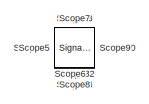
[diagram: root canvas - part 1/3, top left region]
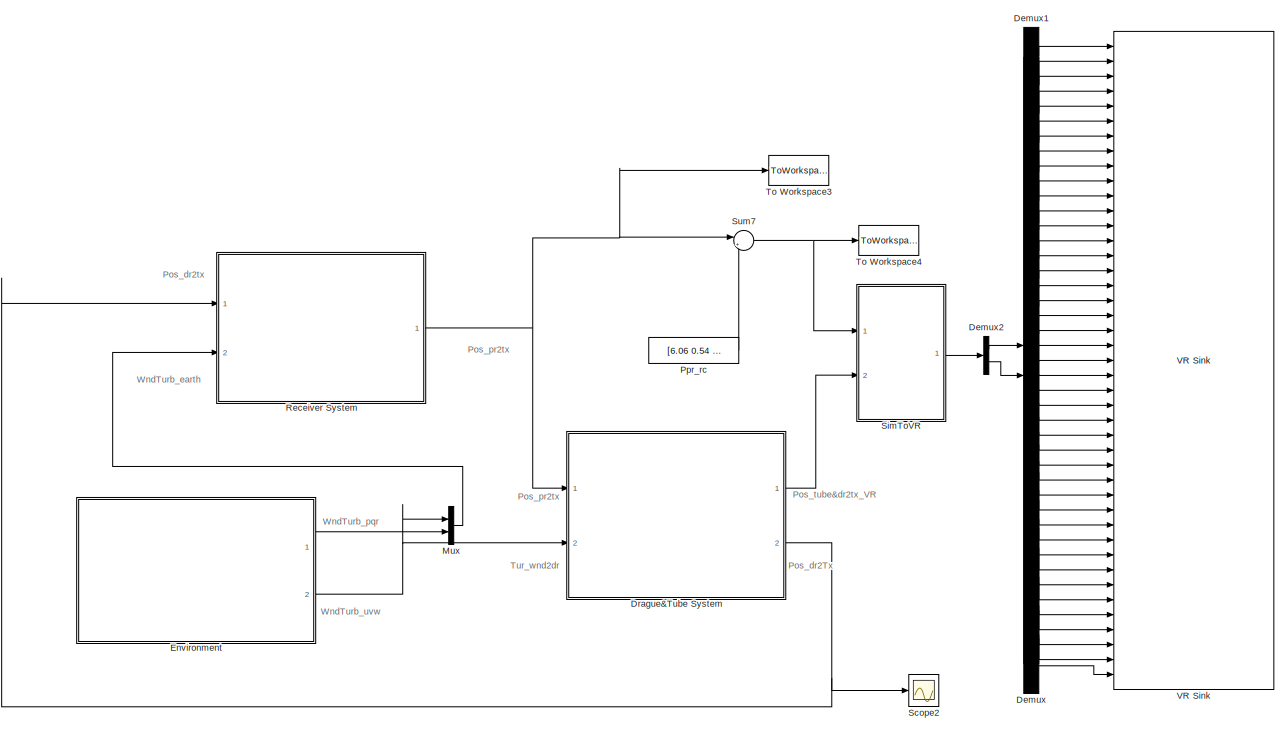
[diagram: root canvas - part 2/3, middle right region]
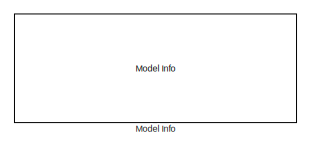
[diagram: root canvas - part 3/3, bottom center region]
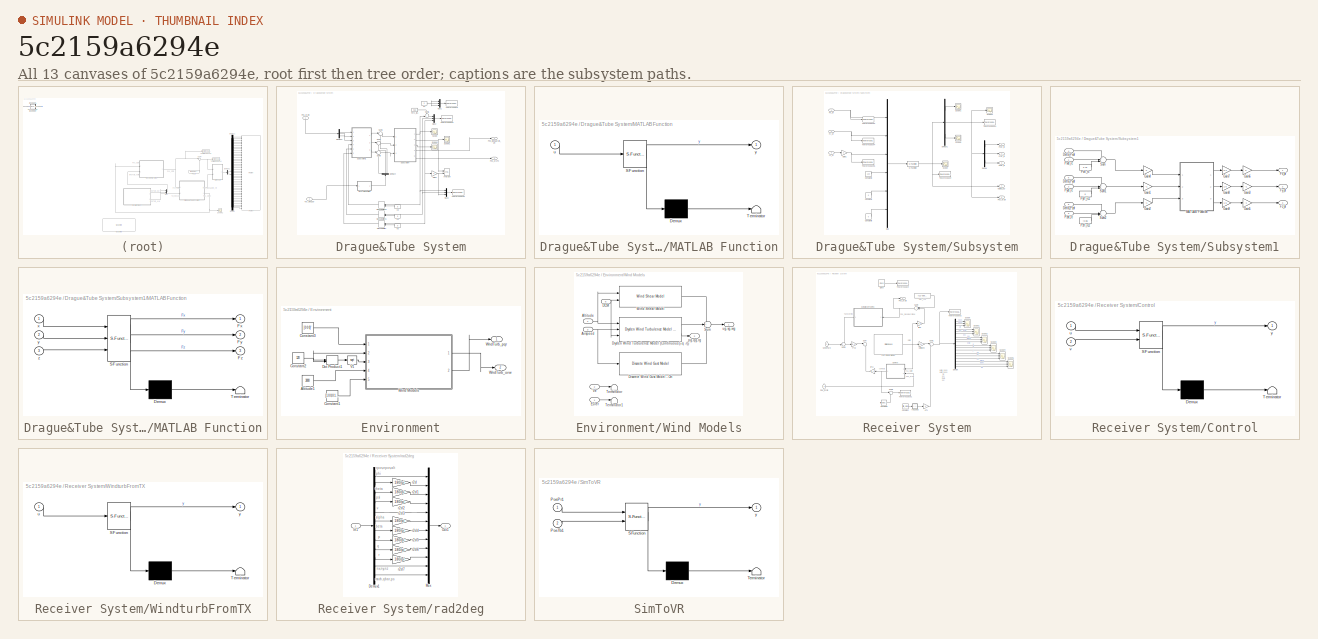
[diagram: thumbnail index - all 13 canvases of the model, root first then tree order]
MODEL slx_5c2159a6294e
KIND model
CONFIG InitFcn = F16InitData1
BLOCK [Demux] Demux
  DisplayOption = bar
  Outputs = 22
  Ports = [1, 22]
BLOCK [Demux] Demux1
  DisplayOption = bar
  Outputs = 21
  Ports = [1, 21]
BLOCK [Demux] Demux2
  DisplayOption = bar
  Outputs = [84,66]
  Ports = [1, 2]
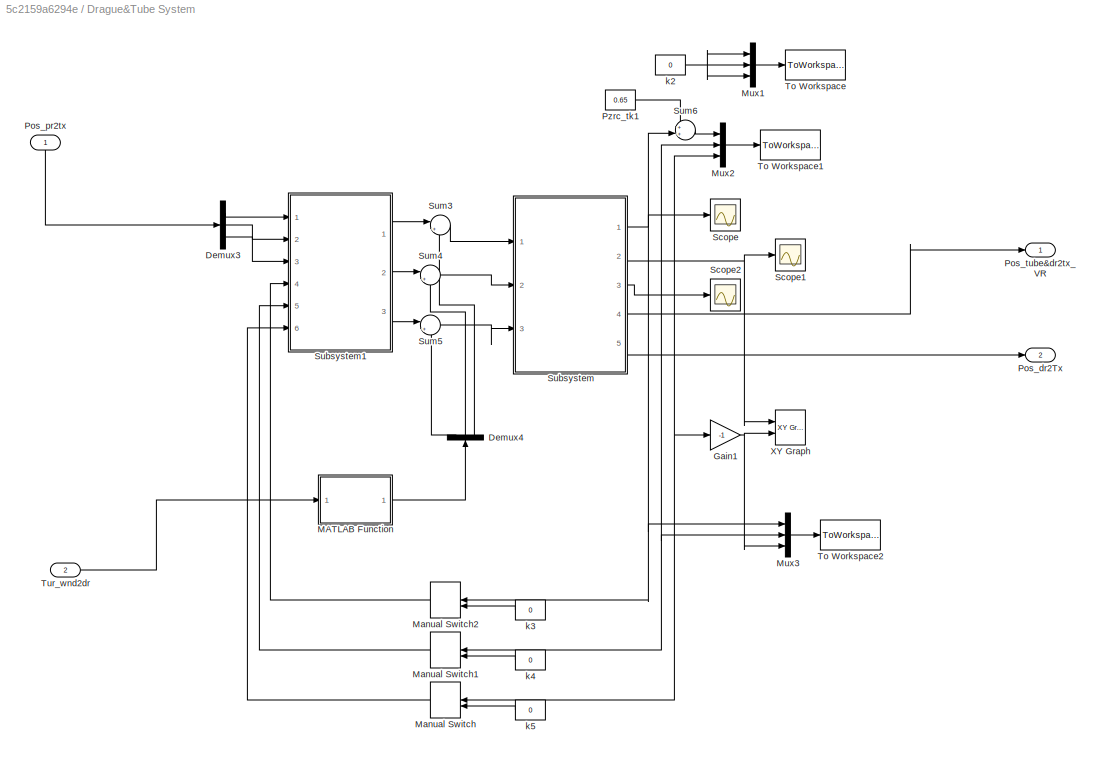
BLOCK [SubSystem] Drague&Tube System
  FunctionWithSeparateData = off
  MaskHideContents = off
  MinAlgLoopOccurrences = off
  Opaque = off
  Ports = [2, 2]
  PropExecContextOutsideSubsystem = off
  RTWSystemCode = Auto
  RequestExecContextInheritance = off
BLOCK [Demux] Drague&Tube System/Demux3
  DisplayOption = bar
  Outputs = 3
  Ports = [1, 3]
BLOCK [Demux] Drague&Tube System/Demux4
  DisplayOption = bar
  Outputs = 3
  Ports = [1, 3]
BLOCK [Gain] Drague&Tube System/Gain1
  Gain = -1
  OutDataTypeStr = Inherit: Inherit via internal rule
  ParamDataTypeStr = Inherit: Inherit via internal rule
  SaturateOnIntegerOverflow = off
BLOCK [SubSystem] Drague&Tube System/MATLAB Function
  ErrorFcn = Stateflow.Translate.translate
  FunctionWithSeparateData = off
  MaskHideContents = off
  MinAlgLoopOccurrences = off
  Opaque = off
  PermitHierarchicalResolution = ExplicitOnly
  Ports = [1, 1]
  PropExecContextOutsideSubsystem = off
  RTWSystemCode = Auto
  RequestExecContextInheritance = off
  SFBlockType = MATLAB Function
  TreatAsAtomicUnit = on
BLOCK [Demux] Drague&Tube System/MATLAB Function/ Demux 
  Outputs = 1
  Ports = [1, 1]
BLOCK [S-Function] Drague&Tube System/MATLAB Function/ SFunction 
  EnableBusSupport = on
  FunctionName = sf_sfun
  PortCounts = [1 2]
  Ports = [1, 2]
  Tag = Stateflow S-Function Bowwave2Drogue_v6 4
BLOCK [Terminator] Drague&Tube System/MATLAB Function/ Terminator 
BLOCK [Inport] Drague&Tube System/MATLAB Function/u
  IconDisplay = Port number
BLOCK [Outport] Drague&Tube System/MATLAB Function/y
  IconDisplay = Port number
BLOCK [ManualSwitch] Drague&Tube System/Manual Switch
BLOCK [ManualSwitch] Drague&Tube System/Manual Switch1
BLOCK [ManualSwitch] Drague&Tube System/Manual Switch2
BLOCK [Mux] Drague&Tube System/Mux1
  DisplayOption = bar
  Inputs = 3
  Ports = [3, 1]
BLOCK [Mux] Drague&Tube System/Mux2
  DisplayOption = bar
  Inputs = 3
  Ports = [3, 1]
BLOCK [Mux] Drague&Tube System/Mux3
  DisplayOption = bar
  Inputs = 3
  Ports = [3, 1]
BLOCK [Outport] Drague&Tube System/Pos_dr2Tx
  IconDisplay = Port number
  Port = 2
BLOCK [Inport] Drague&Tube System/Pos_pr2tx
  IconDisplay = Port number
BLOCK [Outport] Drague&Tube System/Pos_tube&dr2tx_VR
  IconDisplay = Port number
BLOCK [Constant] Drague&Tube System/Pzrc_tk1
  Value = 0.65
BLOCK [Scope] Drague&Tube System/Scope
  DataFormat = StructureWithTime
  Floating = off
  NumInputPorts = 1
  Ports = [1]
  SampleTime = 0
  ShowLegends = off
BLOCK [Scope] Drague&Tube System/Scope1
  DataFormat = StructureWithTime
  Floating = off
  NumInputPorts = 1
  Ports = [1]
  SampleTime = 0
  SaveName = ScopeData1
  ShowLegends = off
  YMax = 1
  YMin = -1
BLOCK [Scope] Drague&Tube System/Scope2
  DataFormat = StructureWithTime
  Floating = off
  NumInputPorts = 1
  Ports = [1]
  SampleTime = 0
  SaveName = ScopeData2
  ShowLegends = off
BLOCK [SubSystem] Drague&Tube System/Subsystem
  FunctionWithSeparateData = off
  MaskHideContents = off
  MinAlgLoopOccurrences = off
  Opaque = off
  Ports = [3, 5]
  PropExecContextOutsideSubsystem = off
  RTWSystemCode = Auto
  RequestExecContextInheritance = off
BLOCK [Constant] Drague&Tube System/Subsystem/Constant3
  Value = 120
BLOCK [Constant] Drague&Tube System/Subsystem/Constant4
  Value = 0
BLOCK [Constant] Drague&Tube System/Subsystem/Constant5
  Value = 0
BLOCK [Demux] Drague&Tube System/Subsystem/Demux
  DisplayOption = bar
  Outputs = 3
  Ports = [1, 3]
BLOCK [Demux] Drague&Tube System/Subsystem/Demux1
  DisplayOption = bar
  Outputs = [57,3,40]
  Ports = [1, 3]
BLOCK [Inport] Drague&Tube System/Subsystem/Fx_dr
  IconDisplay = Port number
BLOCK [Inport] Drague&Tube System/Subsystem/Fy_dr
  IconDisplay = Port number
  Port = 2
BLOCK [Inport] Drague&Tube System/Subsystem/Fz_dr
  IconDisplay = Port number
  Port = 3
BLOCK [Gain] Drague&Tube System/Subsystem/Gain1
  Gain = -1
  OutDataTypeStr = Inherit: Inherit via internal rule
  ParamDataTypeStr = Inherit: Inherit via internal rule
  SaturateOnIntegerOverflow = off
BLOCK [Mux] Drague&Tube System/Subsystem/Mux
  DisplayOption = bar
  Inputs = 6
  Ports = [6, 1]
BLOCK [Outport] Drague&Tube System/Subsystem/Pos_dr2tx
  IconDisplay = Port number
  Port = 5
BLOCK [Outport] Drague&Tube System/Subsystem/Pxdr_tk
  IconDisplay = Port number
BLOCK [Outport] Drague&Tube System/Subsystem/Pydr_tk
  IconDisplay = Port number
  Port = 2
BLOCK [Outport] Drague&Tube System/Subsystem/Pzdr_tk
  IconDisplay = Port number
  Port = 3
BLOCK [S-Function] Drague&Tube System/Subsystem/S-Function
  EnableBusSupport = off
  FunctionName = hose3D_n_air_Fv_correction
  Ports = [1, 1]
BLOCK [Scope] Drague&Tube System/Subsystem/Scope
  DataFormat = StructureWithTime
  Floating = off
  NumInputPorts = 1
  Ports = [1]
  SampleTime = 0
  SaveName = ScopeData4
  ShowLegends = off
  YMax = 1
  YMin = -14
  ZoomMode = yonly
BLOCK [Scope] Drague&Tube System/Subsystem/Scope1
  DataFormat = StructureWithTime
  Floating = off
  NumInputPorts = 1
  Ports = [1]
  SampleTime = 0
  SaveName = ScopeData3
  ShowLegends = off
  YMax = 1
  YMin = -14
  ZoomMode = yonly
BLOCK [Scope] Drague&Tube System/Subsystem/Scope3
  DataFormat = StructureWithTime
  Floating = off
  NumInputPorts = 1
  Ports = [1]
  SampleTime = 0
  SaveName = ScopeData6
  ShowLegends = off
  YMax = 1350
  YMin = 1025
  ZoomMode = yonly
BLOCK [Scope] Drague&Tube System/Subsystem/Scope6
  DataFormat = StructureWithTime
  Floating = off
  NumInputPorts = 1
  Ports = [1]
  SampleTime = 0
  SaveName = ScopeData9
  ShowLegends = off
  YMax = 1
  YMin = -14
  ZoomMode = yonly
BLOCK [ToWorkspace] Drague&Tube System/Subsystem/To Workspace
  MaxDataPoints = inf
  Ports = [1]
  SampleTime = -1
  VariableName = output_3D
BLOCK [ToWorkspace] Drague&Tube System/Subsystem/To Workspace1
  MaxDataPoints = inf
  Ports = [1]
  SampleTime = -1
  VariableName = output_dr1
BLOCK [ToWorkspace] Drague&Tube System/Subsystem/To Workspace3
  MaxDataPoints = inf
  Ports = [1]
  SampleTime = -1
  VariableName = input_x
BLOCK [ToWorkspace] Drague&Tube System/Subsystem/To Workspace4
  MaxDataPoints = inf
  Ports = [1]
  SampleTime = -1
  VariableName = input_y
BLOCK [ToWorkspace] Drague&Tube System/Subsystem/To Workspace5
  MaxDataPoints = inf
  Ports = [1]
  SampleTime = -1
  VariableName = input_z
BLOCK [Outport] Drague&Tube System/Subsystem/output_3D
  IconDisplay = Port number
  Port = 4
BLOCK [SubSystem] Drague&Tube System/Subsystem1
  FunctionWithSeparateData = off
  MaskHideContents = off
  MinAlgLoopOccurrences = off
  Opaque = off
  Ports = [6, 3]
  PropExecContextOutsideSubsystem = off
  RTWSystemCode = Auto
  RequestExecContextInheritance = off
BLOCK [Inport] Drague&Tube System/Subsystem1/Delta_Pxdr
  IconDisplay = Port number
  Port = 4
BLOCK [Inport] Drague&Tube System/Subsystem1/Delta_Pydr
  IconDisplay = Port number
  Port = 5
BLOCK [Inport] Drague&Tube System/Subsystem1/Delta_Pzdr
  IconDisplay = Port number
  Port = 6
BLOCK [Outport] Drague&Tube System/Subsystem1/Fx_dr
  IconDisplay = Port number
BLOCK [Outport] Drague&Tube System/Subsystem1/Fy_dr
  IconDisplay = Port number
  Port = 2
BLOCK [Outport] Drague&Tube System/Subsystem1/Fz_dr
  IconDisplay = Port number
  Port = 3
BLOCK [Gain] Drague&Tube System/Subsystem1/Gain1
  Gain = -1
  OutDataTypeStr = Inherit: Inherit via internal rule
  ParamDataTypeStr = Inherit: Inherit via internal rule
  SaturateOnIntegerOverflow = off
BLOCK [Gain] Drague&Tube System/Subsystem1/Gain2
  Gain = -1
  OutDataTypeStr = Inherit: Inherit via internal rule
  ParamDataTypeStr = Inherit: Inherit via internal rule
  SaturateOnIntegerOverflow = off
BLOCK [Gain] Drague&Tube System/Subsystem1/Gain3
  Gain = -1
  OutDataTypeStr = Inherit: Inherit via internal rule
  ParamDataTypeStr = Inherit: Inherit via internal rule
  SaturateOnIntegerOverflow = off
BLOCK [Gain] Drague&Tube System/Subsystem1/Gain4
  OutDataTypeStr = Inherit: Inherit via internal rule
  ParamDataTypeStr = Inherit: Inherit via internal rule
  SaturateOnIntegerOverflow = off
BLOCK [Gain] Drague&Tube System/Subsystem1/Gain5
  Gain = -1
  OutDataTypeStr = Inherit: Inherit via internal rule
  ParamDataTypeStr = Inherit: Inherit via internal rule
  SaturateOnIntegerOverflow = off
BLOCK [Gain] Drague&Tube System/Subsystem1/Gain6
  OutDataTypeStr = Inherit: Inherit via internal rule
  ParamDataTypeStr = Inherit: Inherit via internal rule
  SaturateOnIntegerOverflow = off
BLOCK [Gain] Drague&Tube System/Subsystem1/Gain7
  Gain = 0.3
  OutDataTypeStr = Inherit: Inherit via internal rule
  ParamDataTypeStr = Inherit: Inherit via internal rule
  SaturateOnIntegerOverflow = off
BLOCK [Gain] Drague&Tube System/Subsystem1/Gain8
  Gain = 1.5
  OutDataTypeStr = Inherit: Inherit via internal rule
  ParamDataTypeStr = Inherit: Inherit via internal rule
  SaturateOnIntegerOverflow = off
BLOCK [Gain] Drague&Tube System/Subsystem1/Gain9
  Gain = 1.5
  OutDataTypeStr = Inherit: Inherit via internal rule
  ParamDataTypeStr = Inherit: Inherit via internal rule
  SaturateOnIntegerOverflow = off
BLOCK [SubSystem] Drague&Tube System/Subsystem1/MATLAB Function
  ErrorFcn = Stateflow.Translate.translate
  FunctionWithSeparateData = off
  MaskHideContents = off
  MinAlgLoopOccurrences = off
  Opaque = off
  PermitHierarchicalResolution = ExplicitOnly
  Ports = [3, 3]
  PropExecContextOutsideSubsystem = off
  RTWSystemCode = Auto
  RequestExecContextInheritance = off
  SFBlockType = MATLAB Function
  TreatAsAtomicUnit = on
BLOCK [Demux] Drague&Tube System/Subsystem1/MATLAB Function/ Demux 
  Outputs = 1
  Ports = [1, 1]
BLOCK [S-Function] Drague&Tube System/Subsystem1/MATLAB Function/ SFunction 
  EnableBusSupport = on
  FunctionName = sf_sfun
  PortCounts = [3 4]
  Ports = [3, 4]
  Tag = Stateflow S-Function Bowwave2Drogue_v6 2
BLOCK [Terminator] Drague&Tube System/Subsystem1/MATLAB Function/ Terminator 
BLOCK [Outport] Drague&Tube System/Subsystem1/MATLAB Function/Fx
  IconDisplay = Port number
BLOCK [Outport] Drague&Tube System/Subsystem1/MATLAB Function/Fy
  IconDisplay = Port number
  Port = 2
BLOCK [Outport] Drague&Tube System/Subsystem1/MATLAB Function/Fz
  IconDisplay = Port number
  Port = 3
BLOCK [Inport] Drague&Tube System/Subsystem1/MATLAB Function/x
  IconDisplay = Port number
BLOCK [Inport] Drague&Tube System/Subsystem1/MATLAB Function/y
  IconDisplay = Port number
  Port = 2
BLOCK [Inport] Drague&Tube System/Subsystem1/MATLAB Function/z
  IconDisplay = Port number
  Port = 3
BLOCK [Inport] Drague&Tube System/Subsystem1/Pxdr_rc
  IconDisplay = Port number
BLOCK [Constant] Drague&Tube System/Subsystem1/Pxfl_rc
  Value = 3.75
BLOCK [Inport] Drague&Tube System/Subsystem1/Pydr_rc
  IconDisplay = Port number
  Port = 2
BLOCK [Constant] Drague&Tube System/Subsystem1/Pyfl_rc1
  Value = 0
BLOCK [Inport] Drague&Tube System/Subsystem1/Pzdr_rc
  IconDisplay = Port number
  Port = 3
BLOCK [Constant] Drague&Tube System/Subsystem1/Pzfl_rc2
  Value = -0.86
BLOCK [Sum] Drague&Tube System/Subsystem1/Sum
  IconShape = round
  InputSameDT = off
  Inputs = +--
  OutDataTypeStr = Inherit: Inherit via internal rule
  Ports = [3, 1]
  SaturateOnIntegerOverflow = off
BLOCK [Sum] Drague&Tube System/Subsystem1/Sum1
  IconShape = round
  InputSameDT = off
  Inputs = +--
  OutDataTypeStr = Inherit: Inherit via internal rule
  Ports = [3, 1]
  SaturateOnIntegerOverflow = off
BLOCK [Sum] Drague&Tube System/Subsystem1/Sum2
  IconShape = round
  InputSameDT = off
  Inputs = +--
  OutDataTypeStr = Inherit: Inherit via internal rule
  Ports = [3, 1]
  SaturateOnIntegerOverflow = off
BLOCK [Sum] Drague&Tube System/Sum3
  IconShape = round
  InputSameDT = off
  Inputs = |++
  OutDataTypeStr = Inherit: Inherit via internal rule
  Ports = [2, 1]
  SaturateOnIntegerOverflow = off
BLOCK [Sum] Drague&Tube System/Sum4
  IconShape = round
  InputSameDT = off
  Inputs = |++
  OutDataTypeStr = Inherit: Inherit via internal rule
  Ports = [2, 1]
  SaturateOnIntegerOverflow = off
BLOCK [Sum] Drague&Tube System/Sum5
  IconShape = round
  InputSameDT = off
  Inputs = |++
  OutDataTypeStr = Inherit: Inherit via internal rule
  Ports = [2, 1]
  SaturateOnIntegerOverflow = off
BLOCK [Sum] Drague&Tube System/Sum6
  IconShape = round
  InputSameDT = off
  Inputs = ++|
  OutDataTypeStr = Inherit: Inherit via internal rule
  Ports = [2, 1]
  SaturateOnIntegerOverflow = off
BLOCK [ToWorkspace] Drague&Tube System/To Workspace
  MaxDataPoints = inf
  Ports = [1]
  SampleTime = -1
  VariableName = alt
BLOCK [ToWorkspace] Drague&Tube System/To Workspace1
  MaxDataPoints = inf
  Ports = [1]
  SampleTime = -1
  VariableName = pos_Tg
BLOCK [ToWorkspace] Drague&Tube System/To Workspace2
  MaxDataPoints = inf
  Ports = [1]
  SampleTime = -1
  VariableName = pos_dr
BLOCK [Inport] Drague&Tube System/Tur_wnd2dr
  IconDisplay = Port number
  Port = 2
BLOCK [Reference] Drague&Tube System/XY Graph  REF=simulink/Sinks/XY Graph
  Ports = [2]
  SourceBlock = simulink/Sinks/XY Graph
  SourceType = XY scope.
  st = -1
  xmax = 1
  xmin = -1
  ymax = 1-4.65
  ymin = -1-4.65
BLOCK [Constant] Drague&Tube System/k2
  Value = 0
BLOCK [Constant] Drague&Tube System/k3
  Value = 0
BLOCK [Constant] Drague&Tube System/k4
  Value = 0
BLOCK [Constant] Drague&Tube System/k5
  Value = 0
BLOCK [SubSystem] Environment
  FunctionWithSeparateData = off
  MaskHideContents = off
  MinAlgLoopOccurrences = off
  Opaque = off
  Ports = [0, 2]
  PropExecContextOutsideSubsystem = off
  RTWSystemCode = Auto
  RequestExecContextInheritance = off
BLOCK [Constant] Environment/Altitude1
  Value = 3000
BLOCK [Constant] Environment/Constant1
  Value = [1 0 0;0 1 0;0 0 1]
BLOCK [Constant] Environment/Constant2
  Value = 120
BLOCK [Constant] Environment/Constant3
  Value = [0 0 0]'
BLOCK [DotProduct] Environment/Dot Product1
  InputSameDT = off
  OutDataTypeStr = Inherit: Inherit via internal rule
  SaturateOnIntegerOverflow = on
BLOCK [Math] Environment/V1
  Operator = sqrt
  Ports = [1, 1]
BLOCK [SubSystem] Environment/Wind Models
  AncestorBlock = aeroblk_lib_HL20/HL20\nAirframe/Environment Models/Wind Models
  FunctionWithSeparateData = off
  MaskHideContents = off
  MinAlgLoopOccurrences = off
  Opaque = off
  Ports = [5, 2]
  PropExecContextOutsideSubsystem = off
  RTWSystemCode = Auto
  RequestExecContextInheritance = off
BLOCK [Inport] Environment/Wind Models/Airspeed
  IconDisplay = Port number
  Port = 3
BLOCK [Inport] Environment/Wind Models/Altitude
  IconDisplay = Port number
  Port = 4
BLOCK [Inport] Environment/Wind Models/DCM
  IconDisplay = Port number
  Port = 5
BLOCK [Reference] Environment/Wind Models/Discrete Wind Gust Model - On  REF=aerolibwind2/Discrete Wind Gust Model
  Gx = on
  Gy = on
  Gz = on
  Ports = [1, 1]
  SourceBlock = aerolibwind2/Discrete Wind Gust Model
  SourceType = Discrete Wind Gust Model
  d_m = [120 120 80]
  t_0 = 20
  units = Metric (MKS)
  v_m = [3.5 3.0 3.0]
BLOCK [Reference] Environment/Wind Models/Dryden Wind Turbulence Model (Continuous (+q -r))  REF=aerolibwind2/Dryden Wind Turbulence Model 
(Continuous (+q -r))
  L_high = 533.4
  Ports = [3, 2]
  Seed = [23341 23342 23343 23344]
  SourceBlock = aerolibwind2/Dryden Wind Turbulence Model \n(Continuous (+q -r))
  SourceType = Wind Turbulence Model
  T_on = on
  TurbProb = 10^-2 - Light
  W20 = 5
  Wdeg = 0
  Wingspan = 4
  model = Continuous Dryden (+q -r)
  spec = MIL-F-8785C
  ts = 0.02
  units = Metric (MKS)
BLOCK [Inport] Environment/Wind Models/Euler
  IconDisplay = Port number
BLOCK [Sum] Environment/Wind Models/Sum
  IconShape = round
  Inputs = +++
  Ports = [3, 1]
BLOCK [Terminator] Environment/Wind Models/Terminator
BLOCK [Terminator] Environment/Wind Models/Terminator1
BLOCK [Inport] Environment/Wind Models/Ve
  IconDisplay = Port number
  Port = 2
BLOCK [Reference] Environment/Wind Models/Wind Shear Model  REF=aerolibwind2/Wind Shear Model
  Ports = [2, 1]
  SourceBlock = aerolibwind2/Wind Shear Model
  SourceType = Wind Shear Model
  W_20 = 1
  Wdeg = 0
  phase = Category C - Terminal Flight Phase
  units = Metric (MKS)
BLOCK [Outport] Environment/Wind Models/pg,qg,rg
  IconDisplay = Port number
  Port = 2
BLOCK [Outport] Environment/Wind Models/ug,vg,wg
  IconDisplay = Port number
BLOCK [Outport] Environment/WndTurb_pqr
  IconDisplay = Port number
BLOCK [Outport] Environment/WndTurb_uvw
  IconDisplay = Port number
  Port = 2
BLOCK [Reference] Model Info  REF=simulink/Model-Wide
Utilities/Model Info
  BlockCM = None
  DisplayStringWithTags = Ppr_rc=[6.06 0.54 -0.86]\nPns_rc=[8.00 0.00  0.00]\nPfl_rc=[3.75 0.00 -0.86]\nPdr0_tk=[-13.549 0.00 5]
  Frame = on
  HorizontalTextAlignment = Center
  InitialBlockCM = None
  LeftAlignmentValue = 0.5
  MaskDisplayString = Ppr_rc=[6.06 0.54 -0.86]\nPns_rc=[8.00 0.00  0.00]\nPfl_rc=[3.75 0.00 -0.86]\nPdr0_tk=[-13.549 0.00 5]
  Ports = []
  SourceBlock = simulink/Model-Wide\nUtilities/Model Info
  SourceBlockDiagram = Bowwave2Drogue_v6
  SourceType = CMBlock
  TagMaxNumber = 20
BLOCK [Mux] Mux
  DisplayOption = bar
  Inputs = 2
  Ports = [2, 1]
BLOCK [Constant] Ppr_rc
  Value = [6.06 0.54 -0.86]
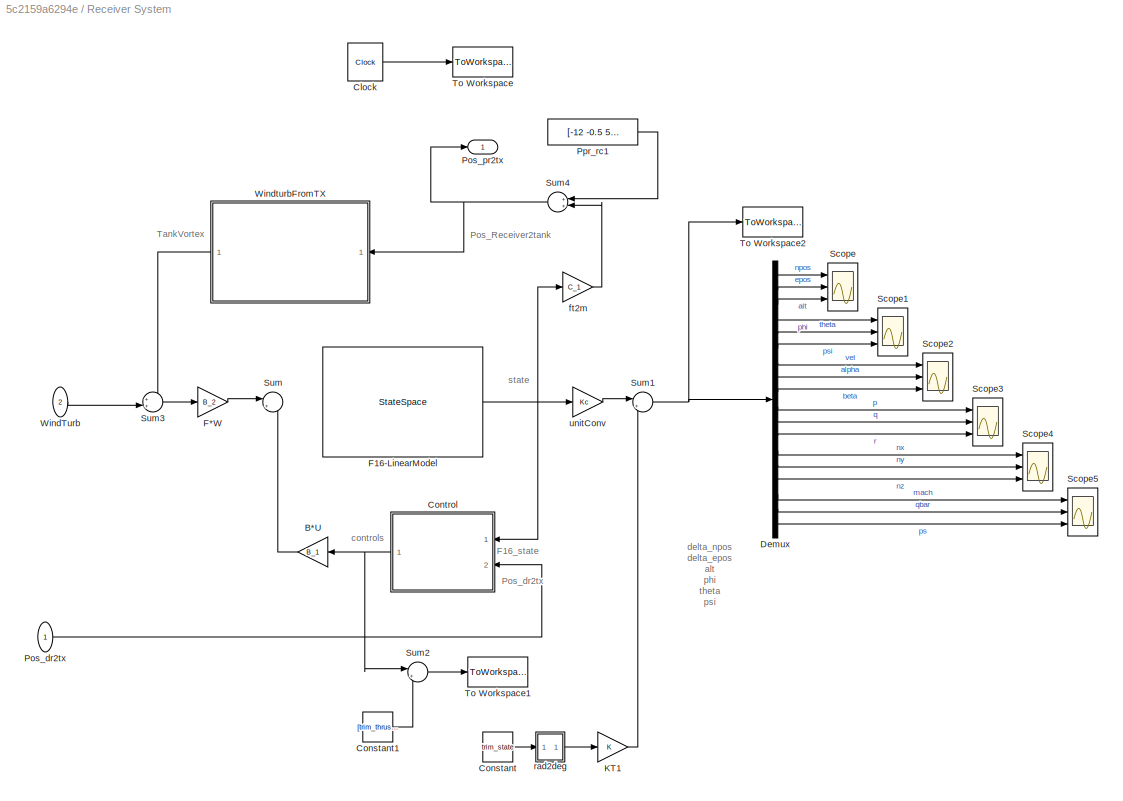
BLOCK [SubSystem] Receiver System
  FunctionWithSeparateData = off
  MaskHideContents = off
  MinAlgLoopOccurrences = off
  Opaque = off
  Ports = [2, 1]
  PropExecContextOutsideSubsystem = off
  RTWSystemCode = Auto
  RequestExecContextInheritance = off
BLOCK [Gain] Receiver System/B*U
  Gain = B_1
  Multiplication = Matrix(K*u) (u vector)
  OutDataTypeStr = Inherit: Inherit via internal rule
  ParamDataTypeStr = Inherit: Inherit via internal rule
  SaturateOnIntegerOverflow = off
BLOCK [Clock] Receiver System/Clock
  Decimation = 50
  DisplayTime = on
BLOCK [Constant] Receiver System/Constant
  Value = trim_state
BLOCK [Constant] Receiver System/Constant1
  Value = [trim_thrust; trim_control(1); trim_control(2); trim_control(3)]
BLOCK [SubSystem] Receiver System/Control
  ErrorFcn = Stateflow.Translate.translate
  FunctionWithSeparateData = off
  MaskHideContents = off
  MinAlgLoopOccurrences = off
  Opaque = off
  PermitHierarchicalResolution = ExplicitOnly
  Ports = [2, 1]
  PropExecContextOutsideSubsystem = off
  RTWSystemCode = Auto
  RequestExecContextInheritance = off
  SFBlockType = MATLAB Function
  TreatAsAtomicUnit = on
BLOCK [Demux] Receiver System/Control/ Demux 
  Outputs = 1
  Ports = [1, 1]
BLOCK [S-Function] Receiver System/Control/ SFunction 
  EnableBusSupport = on
  FunctionName = sf_sfun
  PortCounts = [2 2]
  Ports = [2, 2]
  Tag = Stateflow S-Function Bowwave2Drogue_v6 1
BLOCK [Terminator] Receiver System/Control/ Terminator 
BLOCK [Inport] Receiver System/Control/u
  IconDisplay = Port number
BLOCK [Inport] Receiver System/Control/v
  IconDisplay = Port number
  Port = 2
BLOCK [Outport] Receiver System/Control/y
  IconDisplay = Port number
BLOCK [Demux] Receiver System/Demux
  Outputs = 18
  Ports = [1, 18]
BLOCK [Gain] Receiver System/F*W
  Gain = B_2
  Multiplication = Matrix(K*u) (u vector)
  OutDataTypeStr = Inherit: Inherit via internal rule
  ParamDataTypeStr = Inherit: Inherit via internal rule
  SaturateOnIntegerOverflow = off
BLOCK [StateSpace] Receiver System/F16-LinearModel
  A = A1_h
  B = B1_h
  C = C1_h
  D = D1_h
  X0 = X1_0
BLOCK [Gain] Receiver System/KT1
  OutDataTypeStr = Inherit: Inherit via internal rule
  ParamDataTypeStr = Inherit: Inherit via internal rule
  SaturateOnIntegerOverflow = off
BLOCK [Inport] Receiver System/Pos_dr2tx
  IconDisplay = Port number
BLOCK [Outport] Receiver System/Pos_pr2tx
  IconDisplay = Port number
BLOCK [Constant] Receiver System/Ppr_rc1
  Value = [-12 -0.5 5.86]'
BLOCK [Scope] Receiver System/Scope
  DataFormat = StructureWithTime
  Decimation = 20
  Floating = off
  LimitDataPoints = off
  NumInputPorts = 3
  Ports = [3]
  SampleTime = 0
  SaveName = position
  SaveToWorkspace = on
  ShowLegends = off
  YMax = 5~5~5
  YMin = -5~-5~-5
BLOCK [Scope] Receiver System/Scope1
  DataFormat = StructureWithTime
  Decimation = 20
  Floating = off
  LimitDataPoints = off
  NumInputPorts = 3
  Ports = [3]
  SampleTime = 0
  SaveName = ScopeData7
  ShowLegends = off
  YMax = 5~5~5
  YMin = -5~-5~-5
BLOCK [Scope] Receiver System/Scope2
  DataFormat = StructureWithTime
  Decimation = 20
  Floating = off
  LimitDataPoints = off
  NumInputPorts = 3
  Ports = [3]
  SampleTime = 0
  SaveName = ScopeData8
  ShowLegends = off
  YMax = 5~5~5
  YMin = -5~-5~-5
  ZoomMode = xonly
BLOCK [Scope] Receiver System/Scope3
  DataFormat = StructureWithTime
  Decimation = 20
  Floating = off
  LimitDataPoints = off
  NumInputPorts = 3
  Ports = [3]
  SampleTime = 0
  SaveName = ScopeData10
  ShowLegends = off
  YMax = 5~5~5
  YMin = -5~-5~-5
BLOCK [Scope] Receiver System/Scope4
  DataFormat = StructureWithTime
  Decimation = 20
  Floating = off
  LimitDataPoints = off
  NumInputPorts = 3
  Ports = [3]
  SampleTime = 0
  SaveName = ScopeData11
  ShowLegends = off
  YMax = 5~5~5
  YMin = -5~-5~-5
BLOCK [Scope] Receiver System/Scope5
  DataFormat = StructureWithTime
  Floating = off
  NumInputPorts = 3
  Ports = [3]
  SampleTime = 0
  SaveName = ScopeData5
  ShowLegends = off
  YMax = 5~5~5
  YMin = -5~-5~-5
BLOCK [Sum] Receiver System/Sum
  IconShape = round
  InputSameDT = off
  Inputs = |++
  OutDataTypeStr = Inherit: Inherit via internal rule
  Ports = [2, 1]
  SaturateOnIntegerOverflow = off
BLOCK [Sum] Receiver System/Sum1
  IconShape = round
  Inputs = |++
  Ports = [2, 1]
BLOCK [Sum] Receiver System/Sum2
  IconShape = round
  Inputs = |++
  Ports = [2, 1]
BLOCK [Sum] Receiver System/Sum3
  IconShape = round
  InputSameDT = off
  Inputs = ++|
  OutDataTypeStr = Inherit: Inherit via internal rule
  Ports = [2, 1]
  SaturateOnIntegerOverflow = off
BLOCK [Sum] Receiver System/Sum4
  IconShape = round
  InputSameDT = off
  Inputs = ++|
  OutDataTypeStr = Inherit: Inherit via internal rule
  Ports = [2, 1]
  SaturateOnIntegerOverflow = off
BLOCK [ToWorkspace] Receiver System/To Workspace
  Decimation = 100
  MaxDataPoints = inf
  Ports = [1]
  SampleTime = -1
  VariableName = T
BLOCK [ToWorkspace] Receiver System/To Workspace1
  Decimation = 100
  MaxDataPoints = inf
  Ports = [1]
  SampleTime = -1
  VariableName = controls
BLOCK [ToWorkspace] Receiver System/To Workspace2
  Decimation = 100
  MaxDataPoints = inf
  Ports = [1]
  SampleTime = -1
  VariableName = simout
BLOCK [Inport] Receiver System/WindTurb
  IconDisplay = Port number
  Port = 2
BLOCK [SubSystem] Receiver System/WindturbFromTX
  ErrorFcn = Stateflow.Translate.translate
  FunctionWithSeparateData = off
  MaskHideContents = off
  MinAlgLoopOccurrences = off
  Opaque = off
  PermitHierarchicalResolution = ExplicitOnly
  Ports = [1, 1]
  PropExecContextOutsideSubsystem = off
  RTWSystemCode = Auto
  RequestExecContextInheritance = off
  SFBlockType = MATLAB Function
  TreatAsAtomicUnit = on
BLOCK [Demux] Receiver System/WindturbFromTX/ Demux 
  Outputs = 1
  Ports = [1, 1]
BLOCK [S-Function] Receiver System/WindturbFromTX/ SFunction 
  EnableBusSupport = on
  FunctionName = sf_sfun
  PortCounts = [1 2]
  Ports = [1, 2]
  Tag = Stateflow S-Function Bowwave2Drogue_v6 5
BLOCK [Terminator] Receiver System/WindturbFromTX/ Terminator 
BLOCK [Inport] Receiver System/WindturbFromTX/u
  IconDisplay = Port number
BLOCK [Outport] Receiver System/WindturbFromTX/y
  IconDisplay = Port number
BLOCK [Gain] Receiver System/ft2m
  Gain = C_1
  Multiplication = Matrix(K*u) (u vector)
  OutDataTypeStr = Inherit: Inherit via internal rule
  ParamDataTypeStr = Inherit: Inherit via internal rule
  SaturateOnIntegerOverflow = off
BLOCK [SubSystem] Receiver System/rad2deg
  FunctionWithSeparateData = off
  MaskHideContents = off
  MinAlgLoopOccurrences = off
  Opaque = off
  Ports = [1, 1]
  PropExecContextOutsideSubsystem = off
  RTWSystemCode = Auto
  RequestExecContextInheritance = off
BLOCK [Demux] Receiver System/rad2deg/Demux1
  Outputs = [3 1 1 1 1 1 1 1 1 1 3 3]
  Ports = [1, 12]
BLOCK [Inport] Receiver System/rad2deg/In1
  IconDisplay = Port number
BLOCK [Mux] Receiver System/rad2deg/Mux
  DisplayOption = bar
  Inputs = [3 1 1 1 1 1 1 1 1 1 3 3]
  Ports = [12, 1]
BLOCK [Outport] Receiver System/rad2deg/Out1
  IconDisplay = Port number
BLOCK [Gain] Receiver System/rad2deg/r2d
  Gain = 180/pi
BLOCK [Gain] Receiver System/rad2deg/r2d1
  Gain = 180/pi
BLOCK [Gain] Receiver System/rad2deg/r2d2
  Gain = 180/pi
BLOCK [Gain] Receiver System/rad2deg/r2d3
  Gain = 180/pi
BLOCK [Gain] Receiver System/rad2deg/r2d4
  Gain = 180/pi
BLOCK [Gain] Receiver System/rad2deg/r2d5
  Gain = 180/pi
BLOCK [Gain] Receiver System/rad2deg/r2d6
  Gain = 180/pi
BLOCK [Gain] Receiver System/rad2deg/r2d7
  Gain = 180/pi
BLOCK [Gain] Receiver System/unitConv
  Gain = Kc
  Multiplication = Matrix(K*u) (u vector)
  OutDataTypeStr = Inherit: Inherit via internal rule
  ParamDataTypeStr = Inherit: Inherit via internal rule
  SaturateOnIntegerOverflow = off
BLOCK [SignalViewerScope] Scope
  IOType = viewer
  MaxDataPoints = 7500
  NumInputPorts = 1
  Ports = []
  RefreshTime = 0.035000
  SaveName = ScopeData32
  ShowDataMarkers = off
  ShowLegends = off
BLOCK [SignalViewerScope] Scope1
  IOType = viewer
  MaxDataPoints = 7500
  NumInputPorts = 1
  Ports = []
  RefreshTime = 0.035000
  SaveName = ScopeData33
  ShowDataMarkers = off
  ShowLegends = off
  YMax = 15
  YMin = -40
BLOCK [SignalViewerScope] Scope10
  IOType = viewer
  MaxDataPoints = 7500
  NumInputPorts = 1
  Ports = []
  RefreshTime = 0.035000
  SaveName = ScopeData6
  ShowDataMarkers = off
  ShowLegends = off
  ZoomMode = yonly
BLOCK [SignalViewerScope] Scope11
  IOType = viewer
  MaxDataPoints = 7500
  NumInputPorts = 1
  Ports = []
  RefreshTime = 0.035000
  SaveName = ScopeData7
  ShowDataMarkers = off
  ShowLegends = off
BLOCK [SignalViewerScope] Scope12
  IOType = viewer
  MaxDataPoints = 7500
  NumInputPorts = 1
  Ports = []
  RefreshTime = 0.035000
  SaveName = ScopeData8
  ShowDataMarkers = off
  ShowLegends = off
  ZoomMode = xonly
BLOCK [SignalViewerScope] Scope13
  IOType = viewer
  MaxDataPoints = 7500
  NumInputPorts = 1
  Ports = []
  RefreshTime = 0.035000
  SaveName = ScopeData10
  ShowDataMarkers = off
  ShowLegends = off
BLOCK [SignalViewerScope] Scope14
  IOType = viewer
  MaxDataPoints = 7500
  NumInputPorts = 1
  Ports = []
  RefreshTime = 0.035000
  SaveName = ScopeData11
  ShowDataMarkers = off
  ShowLegends = off
  YMax = 1
  YMin = -1
  ZoomMode = yonly
BLOCK [SignalViewerScope] Scope15
  IOType = viewer
  MaxDataPoints = 7500
  NumInputPorts = 1
  Ports = []
  RefreshTime = 0.035000
  SaveName = ScopeData12
  ShowDataMarkers = off
  ShowLegends = off
BLOCK [SignalViewerScope] Scope16
  IOType = viewer
  MaxDataPoints = 7500
  NumInputPorts = 1
  Ports = []
  RefreshTime = 0.035000
  SaveName = ScopeData13
  ShowDataMarkers = off
  ShowLegends = off
BLOCK [SignalViewerScope] Scope17
  IOType = viewer
  MaxDataPoints = 7500
  NumInputPorts = 1
  Ports = []
  RefreshTime = 0.035000
  SaveName = ScopeData14
  ShowDataMarkers = off
  ShowLegends = off
BLOCK [SignalViewerScope] Scope18
  IOType = viewer
  MaxDataPoints = 7500
  NumInputPorts = 1
  Ports = []
  RefreshTime = 0.035000
  SaveName = ScopeData15
  ShowDataMarkers = off
  ShowLegends = off
BLOCK [SignalViewerScope] Scope19
  IOType = viewer
  MaxDataPoints = 7500
  NumInputPorts = 1
  Ports = []
  RefreshTime = 0.035000
  SaveName = ScopeData16
  ShowDataMarkers = off
  ShowLegends = off
BLOCK [Scope] Scope2
  DataFormat = StructureWithTime
  Floating = off
  NumInputPorts = 1
  Ports = [1]
  SampleTime = 0
  SaveName = ScopeData12
  ShowLegends = off
  YMax = 4
  YMin = -14
BLOCK [SignalViewerScope] Scope20
  IOType = viewer
  MaxDataPoints = 7500
  NumInputPorts = 1
  Ports = []
  RefreshTime = 0.035000
  SaveName = ScopeData17
  ShowDataMarkers = off
  ShowLegends = off
BLOCK [SignalViewerScope] Scope21
  IOType = viewer
  MaxDataPoints = 7500
  NumInputPorts = 1
  Ports = []
  RefreshTime = 0.035000
  SaveName = ScopeData18
  ShowDataMarkers = off
  ShowLegends = off
BLOCK [SignalViewerScope] Scope22
  IOType = viewer
  MaxDataPoints = 7500
  NumInputPorts = 1
  Ports = []
  RefreshTime = 0.035000
  SaveName = ScopeData19
  ShowDataMarkers = off
  ShowLegends = off
BLOCK [SignalViewerScope] Scope23
  IOType = viewer
  MaxDataPoints = 7500
  NumInputPorts = 1
  Ports = []
  RefreshTime = 0.035000
  SaveName = ScopeData20
  ShowDataMarkers = off
  ShowLegends = off
BLOCK [SignalViewerScope] Scope24
  IOType = viewer
  MaxDataPoints = 7500
  NumInputPorts = 1
  Ports = []
  RefreshTime = 0.035000
  SaveName = ScopeData21
  ShowDataMarkers = off
  ShowLegends = off
BLOCK [SignalViewerScope] Scope25
  IOType = viewer
  MaxDataPoints = 7500
  NumInputPorts = 1
  Ports = []
  RefreshTime = 0.035000
  SaveName = ScopeData22
  ShowDataMarkers = off
  ShowLegends = off
BLOCK [SignalViewerScope] Scope26
  IOType = viewer
  LimitDataPoints = off
  MaxDataPoints = 7500
  NumInputPorts = 1
  Ports = []
  RefreshTime = 0.035000
  SaveName = ScopeData23
  ShowDataMarkers = off
  ShowLegends = off
BLOCK [SignalViewerScope] Scope27
  IOType = viewer
  LimitDataPoints = off
  MaxDataPoints = 7500
  NumInputPorts = 1
  Ports = []
  RefreshTime = 0.035000
  SaveName = ScopeData24
  ShowDataMarkers = off
  ShowLegends = off
BLOCK [SignalViewerScope] Scope28
  IOType = viewer
  MaxDataPoints = 7500
  NumInputPorts = 1
  Ports = []
  RefreshTime = 0.035000
  SaveName = ScopeData25
  ShowDataMarkers = off
  ShowLegends = off
BLOCK [SignalViewerScope] Scope29
  IOType = viewer
  LimitDataPoints = off
  MaxDataPoints = 7500
  NumInputPorts = 1
  Ports = []
  RefreshTime = 0.035000
  SaveName = ScopeData26
  ShowDataMarkers = off
  ShowLegends = off
BLOCK [SignalViewerScope] Scope3
  IOType = viewer
  MaxDataPoints = 7500
  NumInputPorts = 1
  Ports = []
  RefreshTime = 0.035000
  ShowDataMarkers = off
  ShowLegends = off
  TimeRange = 8
  YMax = -1095.619158878505
  YMin = -2895.619158878505
BLOCK [SignalViewerScope] Scope30
  IOType = viewer
  LimitDataPoints = off
  MaxDataPoints = 7500
  NumInputPorts = 1
  Ports = []
  RefreshTime = 0.035000
  SaveName = ScopeData27
  ShowDataMarkers = off
  ShowLegends = off
BLOCK [SignalViewerScope] Scope31
  IOType = viewer
  LimitDataPoints = off
  MaxDataPoints = 7500
  NumInputPorts = 1
  Ports = []
  RefreshTime = 0.035000
  SaveName = ScopeData28
  ShowDataMarkers = off
  ShowLegends = off
BLOCK [SignalViewerScope] Scope32
  IOType = viewer
  LimitDataPoints = off
  MaxDataPoints = 7500
  NumInputPorts = 1
  Ports = []
  RefreshTime = 0.035000
  SaveName = ScopeData29
  ShowDataMarkers = off
  ShowLegends = off
BLOCK [SignalViewerScope] Scope33
  IOType = viewer
  LimitDataPoints = off
  MaxDataPoints = 7500
  NumInputPorts = 1
  Ports = []
  RefreshTime = 0.035000
  SaveName = ScopeData30
  ShowDataMarkers = off
  ShowLegends = off
BLOCK [SignalViewerScope] Scope34
  IOType = viewer
  LimitDataPoints = off
  MaxDataPoints = 7500
  NumInputPorts = 1
  Ports = []
  RefreshTime = 0.035000
  SaveName = ScopeData31
  ShowDataMarkers = off
  ShowLegends = off
  YMax = 0.9
  YMin = -0.5
BLOCK [SignalViewerScope] Scope4
  IOType = viewer
  MaxDataPoints = 7500
  NumInputPorts = 1
  Ports = []
  RefreshTime = 0.035000
  SaveName = ScopeData1
  ShowDataMarkers = off
  ShowLegends = off
  ZoomMode = xonly
BLOCK [SignalViewerScope] Scope5
  IOType = viewer
  MaxDataPoints = 7500
  NumInputPorts = 1
  Ports = []
  RefreshTime = 0.035000
  SaveName = ScopeData2
  ShowDataMarkers = off
  ShowLegends = off
BLOCK [SignalViewerScope] Scope6
  IOType = viewer
  MaxDataPoints = 7500
  NumInputPorts = 1
  Ports = []
  RefreshTime = 0.035000
  SaveName = ScopeData3
  ShowDataMarkers = off
  ShowLegends = off
BLOCK [SignalViewerScope] Scope7
  IOType = viewer
  MaxDataPoints = 7500
  NumInputPorts = 1
  Ports = []
  RefreshTime = 0.035000
  SaveName = ScopeData4
  ShowDataMarkers = off
  ShowLegends = off
BLOCK [SignalViewerScope] Scope8
  IOType = viewer
  MaxDataPoints = 7500
  NumInputPorts = 1
  Ports = []
  RefreshTime = 0.035000
  SaveName = ScopeData5
  ShowDataMarkers = off
  ShowLegends = off
BLOCK [SignalViewerScope] Scope9
  IOType = viewer
  MaxDataPoints = 7500
  NumInputPorts = 1
  Ports = []
  RefreshTime = 0.035000
  SaveName = ScopeData9
  ShowDataMarkers = off
  ShowLegends = off
BLOCK [SubSystem] SimToVR
  ErrorFcn = Stateflow.Translate.translate
  FunctionWithSeparateData = off
  MaskHideContents = off
  MinAlgLoopOccurrences = off
  Opaque = off
  PermitHierarchicalResolution = ExplicitOnly
  Ports = [2, 1]
  PropExecContextOutsideSubsystem = off
  RTWSystemCode = Auto
  RequestExecContextInheritance = off
  SFBlockType = MATLAB Function
  TreatAsAtomicUnit = on
BLOCK [Demux] SimToVR/ Demux 
  Outputs = 1
  Ports = [1, 1]
BLOCK [S-Function] SimToVR/ SFunction 
  EnableBusSupport = on
  FunctionName = sf_sfun
  PortCounts = [2 2]
  Ports = [2, 2]
  Tag = Stateflow S-Function Bowwave2Drogue_v6 3
BLOCK [Terminator] SimToVR/ Terminator 
BLOCK [Inport] SimToVR/PosPr1
  IconDisplay = Port number
BLOCK [Inport] SimToVR/PosTb1
  IconDisplay = Port number
  Port = 2
BLOCK [Outport] SimToVR/y
  IconDisplay = Port number
BLOCK [Sum] Sum7
  IconShape = round
  InputSameDT = off
  Inputs = |++
  OutDataTypeStr = Inherit: Inherit via internal rule
  Ports = [2, 1]
  SaturateOnIntegerOverflow = off
BLOCK [ToWorkspace] To Workspace3
  MaxDataPoints = inf
  Ports = [1]
  SampleTime = -1
  VariableName = pos_g
BLOCK [ToWorkspace] To Workspace4
  MaxDataPoints = inf
  Ports = [1]
  SampleTime = -1
  VariableName = pos_pr
BLOCK [Reference] VR Sink  REF=vrlib/VR Sink
  AllowVariableSize = off
  AutoView = off
  FieldsWritten = tube1.rotation.4.1.1.double#tube1.translation.3.1.1.double#tube2.rotation.4.1.1.double#tube2.translation.3.1.1.double#tube3.rotation.4.1.1.double#tube3.translation.3.1.1.double#tube4.rotation.4.1.1.double#tube4.translation.3.1.1.double#tube5.rotation.4.1.1.double#tube5.translation.3.1.1.double#tube6.rotation.4.1.1.double#tube6.translation.3.1.1.double#tube7.rotation.4.1.1.double#tube7.translation....<+892ch>
  FigureProperties = {'Position', 'Name', 'Viewpoint', 'CameraBound', 'CameraDirection', 'CameraPosition', 'CameraUpVector', 'ZoomFactor', 'Antialiasing', 'Headlight', 'Lighting', 'NavPanel', 'StatusBar', 'ToolBar', 'Textures', 'Transparency', 'Triad', 'Wireframe', 'NavZones', 'NavMode', 'NavSpeed', 'CaptureFileFormat', 'CaptureFileName', 'Record2DCompressMethod', 'Record2DCompressQuality', 'Record2D', 'Record2DFileNa...<+595ch>
  InstantiateOnLoad = on
  Ports = [43, 1]
  RemoteChange = off
  RemoteView = off
  SampleTime = -1
  SourceBlock = vrlib/VR Sink
  SourceType = Virtual Reality Sink
  VideoDimensions = [600 900]
  ViewEnable = on
  WorldFileName = AirRefuelingTubeSim.WRL
ANNOTATION (root): Pos_dr2Tx
ANNOTATION (root): Pos_dr2tx
ANNOTATION (root): Pos_pr2tx
ANNOTATION (root): Pos_tube&dr2tx_VR
ANNOTATION (root): Tur_wnd2dr
ANNOTATION (root): WndTurb_earth
ANNOTATION (root): WndTurb_pqr
ANNOTATION (root): WndTurb_uvw
ANNOTATION Receiver System: F16_state
ANNOTATION Receiver System: Pos_Receiver2tank
ANNOTATION Receiver System: Pos_dr2tx
ANNOTATION Receiver System: TankVortex
ANNOTATION Receiver System: controls
ANNOTATION Receiver System: delta_npos delta_epos alt phi theta psi vel alpha beta p q r nx ny nz mach qbar ps
ANNOTATION Receiver System: state
ANNOTATION Receiver System/rad2deg: alpha
ANNOTATION Receiver System/rad2deg: beta
ANNOTATION Receiver System/rad2deg: mach,qbar,ps
ANNOTATION Receiver System/rad2deg: npos,epos,alt
ANNOTATION Receiver System/rad2deg: nx,ny,nz
ANNOTATION Receiver System/rad2deg: p
ANNOTATION Receiver System/rad2deg: phi
ANNOTATION Receiver System/rad2deg: psi
ANNOTATION Receiver System/rad2deg: q
ANNOTATION Receiver System/rad2deg: r
ANNOTATION Receiver System/rad2deg: theta
ANNOTATION Receiver System/rad2deg: v
LINE Demux1:1 -> VR Sink:1
LINE Demux1:10 -> VR Sink:19
LINE Demux1:11 -> VR Sink:21
LINE Demux1:12 -> VR Sink:23
LINE Demux1:13 -> VR Sink:25
LINE Demux1:14 -> VR Sink:27
LINE Demux1:15 -> VR Sink:29
LINE Demux1:16 -> VR Sink:31
LINE Demux1:17 -> VR Sink:33
LINE Demux1:18 -> VR Sink:35
LINE Demux1:19 -> VR Sink:37
LINE Demux1:2 -> VR Sink:3
LINE Demux1:20 -> VR Sink:39
LINE Demux1:21 -> VR Sink:41
LINE Demux1:3 -> VR Sink:5
LINE Demux1:4 -> VR Sink:7
LINE Demux1:5 -> VR Sink:9
LINE Demux1:6 -> VR Sink:11
LINE Demux1:7 -> VR Sink:13
LINE Demux1:8 -> VR Sink:15
LINE Demux1:9 -> VR Sink:17
LINE Demux2:1 -> Demux1:1
LINE Demux2:2 -> Demux:1
LINE Demux:1 -> VR Sink:2
LINE Demux:10 -> VR Sink:20
LINE Demux:11 -> VR Sink:22
LINE Demux:12 -> VR Sink:24
LINE Demux:13 -> VR Sink:26
LINE Demux:14 -> VR Sink:28
LINE Demux:15 -> VR Sink:30
LINE Demux:16 -> VR Sink:32
LINE Demux:17 -> VR Sink:34
LINE Demux:18 -> VR Sink:36
LINE Demux:19 -> VR Sink:38
LINE Demux:2 -> VR Sink:4
LINE Demux:20 -> VR Sink:40
LINE Demux:21 -> VR Sink:42
LINE Demux:22 -> VR Sink:43
LINE Demux:3 -> VR Sink:6
LINE Demux:4 -> VR Sink:8
LINE Demux:5 -> VR Sink:10
LINE Demux:6 -> VR Sink:12
LINE Demux:7 -> VR Sink:14
LINE Demux:8 -> VR Sink:16
LINE Demux:9 -> VR Sink:18
LINE Drague&Tube System/Demux3:1 -> Drague&Tube System/Subsystem1:1
LINE Drague&Tube System/Demux3:2 -> Drague&Tube System/Subsystem1:2
LINE Drague&Tube System/Demux3:3 -> Drague&Tube System/Subsystem1:3
LINE Drague&Tube System/Demux4:1 -> Drague&Tube System/Sum5:2
LINE Drague&Tube System/Demux4:2 -> Drague&Tube System/Sum4:2
LINE Drague&Tube System/Demux4:3 -> Drague&Tube System/Sum3:2
NET Drague&Tube System/Gain1:1 -> Drague&Tube System/Mux3:3, Drague&Tube System/XY Graph:2
LINE Drague&Tube System/MATLAB Function:1 -> Drague&Tube System/Demux4:1
LINE Drague&Tube System/Manual Switch1:1 -> Drague&Tube System/Subsystem1:5
LINE Drague&Tube System/Manual Switch2:1 -> Drague&Tube System/Subsystem1:4
LINE Drague&Tube System/Manual Switch:1 -> Drague&Tube System/Subsystem1:6
LINE Drague&Tube System/Mux1:1 -> Drague&Tube System/To Workspace:1
LINE Drague&Tube System/Mux2:1 -> Drague&Tube System/To Workspace1:1
LINE Drague&Tube System/Mux3:1 -> Drague&Tube System/To Workspace2:1
LINE Drague&Tube System/Pos_pr2tx:1 -> Drague&Tube System/Demux3:1
LINE Drague&Tube System/Pzrc_tk1:1 -> Drague&Tube System/Sum6:1
LINE Drague&Tube System/Subsystem/Constant3:1 -> Drague&Tube System/Subsystem/Mux:4
LINE Drague&Tube System/Subsystem/Constant4:1 -> Drague&Tube System/Subsystem/Mux:5
LINE Drague&Tube System/Subsystem/Constant5:1 -> Drague&Tube System/Subsystem/Mux:6
LINE Drague&Tube System/Subsystem/Demux1:1 -> Drague&Tube System/Subsystem/Scope1:1
NET Drague&Tube System/Subsystem/Demux1:2 -> Drague&Tube System/Subsystem/Demux:1, Drague&Tube System/Subsystem/Pos_dr2tx:1, Drague&Tube System/Subsystem/Scope3:1, Drague&Tube System/Subsystem/To Workspace1:1
LINE Drague&Tube System/Subsystem/Demux1:3 -> Drague&Tube System/Subsystem/Scope6:1
LINE Drague&Tube System/Subsystem/Demux:1 -> Drague&Tube System/Subsystem/Pxdr_tk:1
LINE Drague&Tube System/Subsystem/Demux:2 -> Drague&Tube System/Subsystem/Pydr_tk:1
LINE Drague&Tube System/Subsystem/Demux:3 -> Drague&Tube System/Subsystem/Pzdr_tk:1
NET Drague&Tube System/Subsystem/Fx_dr:1 -> Drague&Tube System/Subsystem/Mux:1, Drague&Tube System/Subsystem/To Workspace3:1
NET Drague&Tube System/Subsystem/Fy_dr:1 -> Drague&Tube System/Subsystem/Mux:2, Drague&Tube System/Subsystem/To Workspace4:1
LINE Drague&Tube System/Subsystem/Fz_dr:1 -> Drague&Tube System/Subsystem/Gain1:1
NET Drague&Tube System/Subsystem/Gain1:1 -> Drague&Tube System/Subsystem/Mux:3, Drague&Tube System/Subsystem/To Workspace5:1
LINE Drague&Tube System/Subsystem/Mux:1 -> Drague&Tube System/Subsystem/S-Function:1
NET Drague&Tube System/Subsystem/S-Function:1 -> Drague&Tube System/Subsystem/Demux1:1, Drague&Tube System/Subsystem/Scope:1, Drague&Tube System/Subsystem/To Workspace:1, Drague&Tube System/Subsystem/output_3D:1
LINE Drague&Tube System/Subsystem1/Delta_Pxdr:1 -> Drague&Tube System/Subsystem1/Sum:1
LINE Drague&Tube System/Subsystem1/Delta_Pydr:1 -> Drague&Tube System/Subsystem1/Sum1:1
LINE Drague&Tube System/Subsystem1/Delta_Pzdr:1 -> Drague&Tube System/Subsystem1/Sum2:1
LINE Drague&Tube System/Subsystem1/Gain1:1 -> Drague&Tube System/Subsystem1/MATLAB Function:2
LINE Drague&Tube System/Subsystem1/Gain2:1 -> Drague&Tube System/Subsystem1/MATLAB Function:3
LINE Drague&Tube System/Subsystem1/Gain3:1 -> Drague&Tube System/Subsystem1/Fy_dr:1
LINE Drague&Tube System/Subsystem1/Gain4:1 -> Drague&Tube System/Subsystem1/MATLAB Function:1
LINE Drague&Tube System/Subsystem1/Gain5:1 -> Drague&Tube System/Subsystem1/Fz_dr:1
LINE Drague&Tube System/Subsystem1/Gain6:1 -> Drague&Tube System/Subsystem1/Fx_dr:1
LINE Drague&Tube System/Subsystem1/Gain7:1 -> Drague&Tube System/Subsystem1/Gain6:1
LINE Drague&Tube System/Subsystem1/Gain8:1 -> Drague&Tube System/Subsystem1/Gain3:1
LINE Drague&Tube System/Subsystem1/Gain9:1 -> Drague&Tube System/Subsystem1/Gain5:1
LINE Drague&Tube System/Subsystem1/MATLAB Function:1 -> Drague&Tube System/Subsystem1/Gain7:1
LINE Drague&Tube System/Subsystem1/MATLAB Function:2 -> Drague&Tube System/Subsystem1/Gain8:1
LINE Drague&Tube System/Subsystem1/MATLAB Function:3 -> Drague&Tube System/Subsystem1/Gain9:1
LINE Drague&Tube System/Subsystem1/Pxdr_rc:1 -> Drague&Tube System/Subsystem1/Sum:2
LINE Drague&Tube System/Subsystem1/Pxfl_rc:1 -> Drague&Tube System/Subsystem1/Sum:3
LINE Drague&Tube System/Subsystem1/Pydr_rc:1 -> Drague&Tube System/Subsystem1/Sum1:2
LINE Drague&Tube System/Subsystem1/Pyfl_rc1:1 -> Drague&Tube System/Subsystem1/Sum1:3
LINE Drague&Tube System/Subsystem1/Pzdr_rc:1 -> Drague&Tube System/Subsystem1/Sum2:2
LINE Drague&Tube System/Subsystem1/Pzfl_rc2:1 -> Drague&Tube System/Subsystem1/Sum2:3
LINE Drague&Tube System/Subsystem1/Sum1:1 -> Drague&Tube System/Subsystem1/Gain1:1
LINE Drague&Tube System/Subsystem1/Sum2:1 -> Drague&Tube System/Subsystem1/Gain2:1
LINE Drague&Tube System/Subsystem1/Sum:1 -> Drague&Tube System/Subsystem1/Gain4:1
LINE Drague&Tube System/Subsystem1:1 -> Drague&Tube System/Sum3:1
LINE Drague&Tube System/Subsystem1:2 -> Drague&Tube System/Sum4:1
LINE Drague&Tube System/Subsystem1:3 -> Drague&Tube System/Sum5:1
NET Drague&Tube System/Subsystem:1 -> Drague&Tube System/Manual Switch2:1, Drague&Tube System/Mux3:1, Drague&Tube System/Scope:1, Drague&Tube System/Sum6:2
NET Drague&Tube System/Subsystem:2 -> Drague&Tube System/Manual Switch1:1, Drague&Tube System/Mux2:2, Drague&Tube System/Mux3:2, Drague&Tube System/Scope1:1, Drague&Tube System/XY Graph:1
NET Drague&Tube System/Subsystem:3 -> Drague&Tube System/Gain1:1, Drague&Tube System/Manual Switch:1, Drague&Tube System/Mux2:3, Drague&Tube System/Scope2:1
LINE Drague&Tube System/Subsystem:4 -> Drague&Tube System/Pos_tube&dr2tx_VR:1
LINE Drague&Tube System/Subsystem:5 -> Drague&Tube System/Pos_dr2Tx:1
LINE Drague&Tube System/Sum3:1 -> Drague&Tube System/Subsystem:1
LINE Drague&Tube System/Sum4:1 -> Drague&Tube System/Subsystem:2
LINE Drague&Tube System/Sum5:1 -> Drague&Tube System/Subsystem:3
LINE Drague&Tube System/Sum6:1 -> Drague&Tube System/Mux2:1
LINE Drague&Tube System/Tur_wnd2dr:1 -> Drague&Tube System/MATLAB Function:1
NET Drague&Tube System/k2:1 -> Drague&Tube System/Mux1:1, Drague&Tube System/Mux1:2, Drague&Tube System/Mux1:3
LINE Drague&Tube System/k3:1 -> Drague&Tube System/Manual Switch2:2
LINE Drague&Tube System/k4:1 -> Drague&Tube System/Manual Switch1:2
LINE Drague&Tube System/k5:1 -> Drague&Tube System/Manual Switch:2
LINE Drague&Tube System:1 -> SimToVR:2
NET Drague&Tube System:2 -> Receiver System:1, Scope2:1
LINE Environment/Altitude1:1 -> Environment/Wind Models:4
LINE Environment/Constant1:1 -> Environment/Wind Models:5
NET Environment/Constant2:1 -> Environment/Dot Product1:1, Environment/Dot Product1:2, Environment/Wind Models:2
LINE Environment/Constant3:1 -> Environment/Wind Models:1
LINE Environment/Dot Product1:1 -> Environment/V1:1
LINE Environment/V1:1 -> Environment/Wind Models:3
LINE Environment/Wind Models:1 -> Environment/WndTurb_uvw:1
LINE Environment/Wind Models:2 -> Environment/WndTurb_pqr:1
LINE Environment:1 -> Mux:2
NET Environment:2 -> Drague&Tube System:2, Mux:1
LINE Mux:1 -> Receiver System:2
LINE Ppr_rc:1 -> Sum7:2
LINE Receiver System/B*U:1 -> Receiver System/Sum:2
LINE Receiver System/Clock:1 -> Receiver System/To Workspace:1
LINE Receiver System/Constant1:1 -> Receiver System/Sum2:2
LINE Receiver System/Constant:1 -> Receiver System/rad2deg:1
NET Receiver System/Control:1 -> Receiver System/B*U:1, Receiver System/Sum2:1
LINE Receiver System/Demux:1 -> Receiver System/Scope:1
LINE Receiver System/Demux:10 -> Receiver System/Scope3:1
LINE Receiver System/Demux:11 -> Receiver System/Scope3:2
LINE Receiver System/Demux:12 -> Receiver System/Scope3:3
LINE Receiver System/Demux:13 -> Receiver System/Scope4:1
LINE Receiver System/Demux:14 -> Receiver System/Scope4:2
LINE Receiver System/Demux:15 -> Receiver System/Scope4:3
LINE Receiver System/Demux:16 -> Receiver System/Scope5:1
LINE Receiver System/Demux:17 -> Receiver System/Scope5:2
LINE Receiver System/Demux:18 -> Receiver System/Scope5:3
LINE Receiver System/Demux:2 -> Receiver System/Scope:2
LINE Receiver System/Demux:3 -> Receiver System/Scope:3
LINE Receiver System/Demux:4 -> Receiver System/Scope1:1
LINE Receiver System/Demux:5 -> Receiver System/Scope1:2
LINE Receiver System/Demux:6 -> Receiver System/Scope1:3
LINE Receiver System/Demux:7 -> Receiver System/Scope2:1
LINE Receiver System/Demux:8 -> Receiver System/Scope2:2
LINE Receiver System/Demux:9 -> Receiver System/Scope2:3
LINE Receiver System/F*W:1 -> Receiver System/Sum:1
NET Receiver System/F16-LinearModel:1 -> Receiver System/Control:1, Receiver System/ft2m:1, Receiver System/unitConv:1
LINE Receiver System/KT1:1 -> Receiver System/Sum1:2
LINE Receiver System/Pos_dr2tx:1 -> Receiver System/Control:2
LINE Receiver System/Ppr_rc1:1 -> Receiver System/Sum4:1
NET Receiver System/Sum1:1 -> Receiver System/Demux:1, Receiver System/To Workspace2:1
LINE Receiver System/Sum2:1 -> Receiver System/To Workspace1:1
LINE Receiver System/Sum3:1 -> Receiver System/F*W:1
NET Receiver System/Sum4:1 -> Receiver System/Pos_pr2tx:1, Receiver System/WindturbFromTX:1
LINE Receiver System/WindTurb:1 -> Receiver System/Sum3:2
LINE Receiver System/WindturbFromTX:1 -> Receiver System/Sum3:1
LINE Receiver System/ft2m:1 -> Receiver System/Sum4:2
LINE Receiver System/rad2deg/Demux1:1 -> Receiver System/rad2deg/Mux:1
LINE Receiver System/rad2deg/Demux1:10 -> Receiver System/rad2deg/r2d7:1
LINE Receiver System/rad2deg/Demux1:11 -> Receiver System/rad2deg/Mux:11
LINE Receiver System/rad2deg/Demux1:12 -> Receiver System/rad2deg/Mux:12
LINE Receiver System/rad2deg/Demux1:2 -> Receiver System/rad2deg/r2d:1
LINE Receiver System/rad2deg/Demux1:3 -> Receiver System/rad2deg/r2d1:1
LINE Receiver System/rad2deg/Demux1:4 -> Receiver System/rad2deg/r2d2:1
LINE Receiver System/rad2deg/Demux1:5 -> Receiver System/rad2deg/Mux:5
LINE Receiver System/rad2deg/Demux1:6 -> Receiver System/rad2deg/r2d3:1
LINE Receiver System/rad2deg/Demux1:7 -> Receiver System/rad2deg/r2d4:1
LINE Receiver System/rad2deg/Demux1:8 -> Receiver System/rad2deg/r2d5:1
LINE Receiver System/rad2deg/Demux1:9 -> Receiver System/rad2deg/r2d6:1
LINE Receiver System/rad2deg/In1:1 -> Receiver System/rad2deg/Demux1:1
LINE Receiver System/rad2deg/Mux:1 -> Receiver System/rad2deg/Out1:1
LINE Receiver System/rad2deg/r2d1:1 -> Receiver System/rad2deg/Mux:3
LINE Receiver System/rad2deg/r2d2:1 -> Receiver System/rad2deg/Mux:4
LINE Receiver System/rad2deg/r2d3:1 -> Receiver System/rad2deg/Mux:6
LINE Receiver System/rad2deg/r2d4:1 -> Receiver System/rad2deg/Mux:7
LINE Receiver System/rad2deg/r2d5:1 -> Receiver System/rad2deg/Mux:8
LINE Receiver System/rad2deg/r2d6:1 -> Receiver System/rad2deg/Mux:9
LINE Receiver System/rad2deg/r2d7:1 -> Receiver System/rad2deg/Mux:10
LINE Receiver System/rad2deg/r2d:1 -> Receiver System/rad2deg/Mux:2
LINE Receiver System/rad2deg:1 -> Receiver System/KT1:1
LINE Receiver System/unitConv:1 -> Receiver System/Sum1:1
NET Receiver System:1 -> Drague&Tube System:1, Sum7:1, To Workspace3:1
LINE SimToVR:1 -> Demux2:1
NET Sum7:1 -> SimToVR:1, To Workspace4:1
note: NET lines group one-source signal fan-out (src -> all destinations, sorted); 1:1 wires keep LINE
